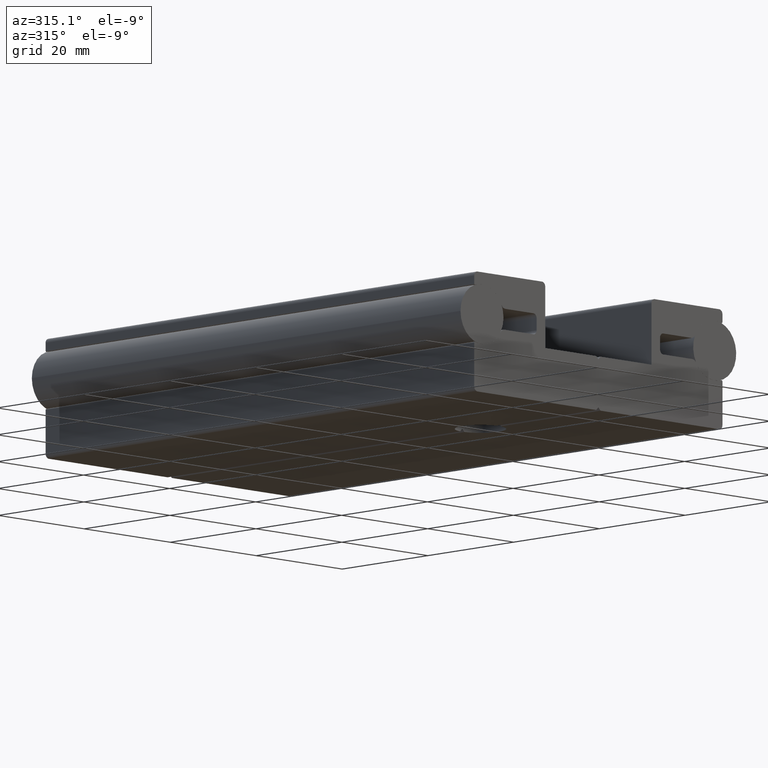
[diagram: clean part render]
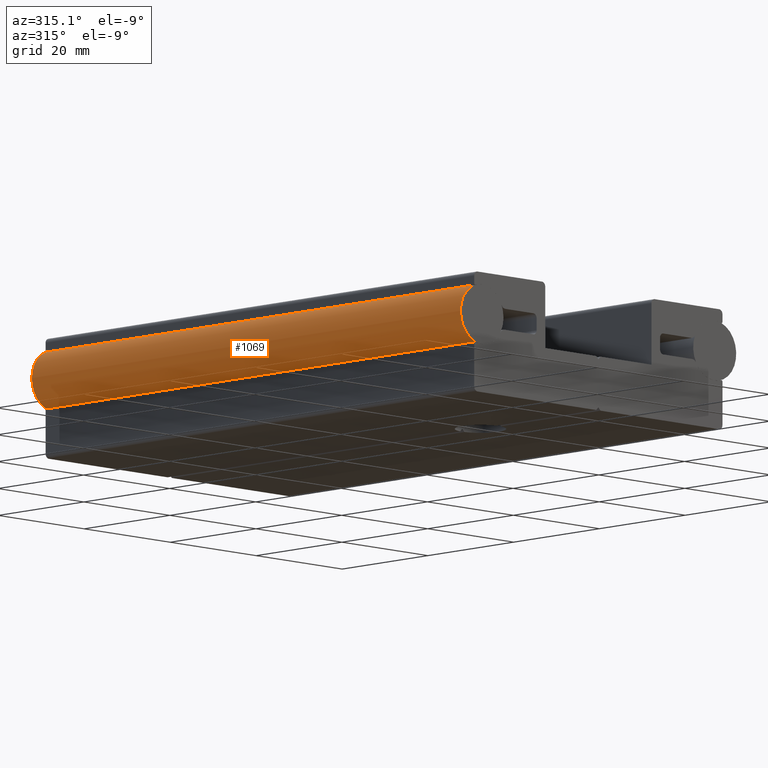
[diagram: same view with one face highlighted and labeled with its STEP entity id]
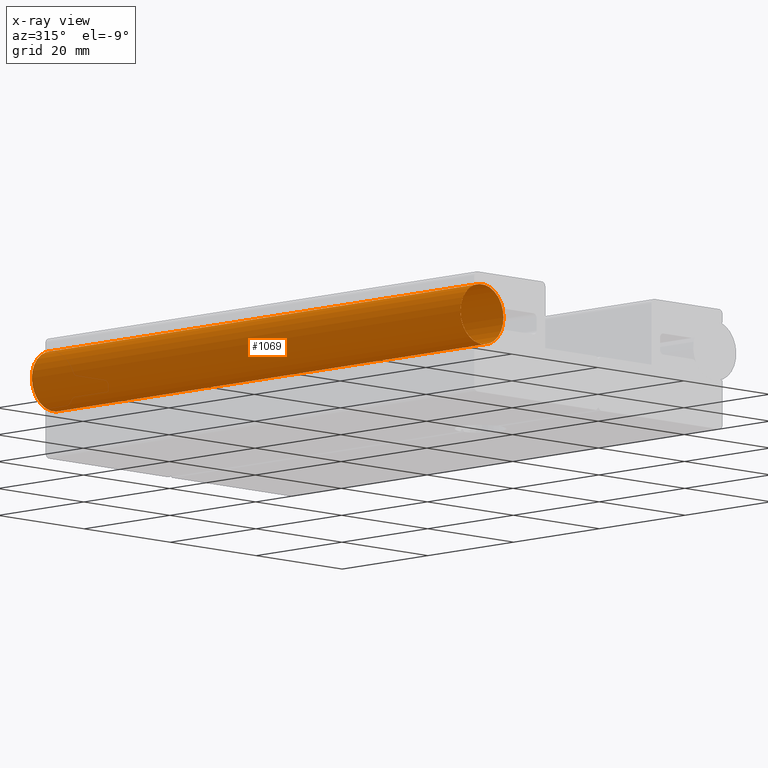
[diagram: x-ray of the same camera — body ghosted, the highlighted face saturated]
A machine part, auxiliary view. The second image highlights one B-rep face of the part: STEP entity #1069.
The next image is the same camera in x-ray: the body ghosted, the highlighted face saturated — about 0% of this face is hidden behind the body in this view.
In plain terms, the highlighted cylindrical surface (bore or boss wall) has radius 5 mm, axis along (0, -1, 0).
Its self-contained STEP definition (entity closure, byte-faithful):
#113=FACE_OUTER_BOUND('',#167,.T.);
#167=EDGE_LOOP('',(#988,#989,#990,#991));
#264=LINE('',#1915,#360);
#360=VECTOR('',#1591,5.);
#411=CIRCLE('',#1257,5.);
#412=CIRCLE('',#1259,5.);
#523=VERTEX_POINT('',#1910);
#524=VERTEX_POINT('',#1913);
#678=EDGE_CURVE('',#523,#523,#411,.T.);
#679=EDGE_CURVE('',#524,#524,#412,.T.);
#680=EDGE_CURVE('',#524,#523,#264,.T.);
#988=ORIENTED_EDGE('',*,*,#679,.F.);
#989=ORIENTED_EDGE('',*,*,#680,.T.);
#990=ORIENTED_EDGE('',*,*,#678,.F.);
#991=ORIENTED_EDGE('',*,*,#680,.F.);
#1016=CYLINDRICAL_SURFACE('',#1258,5.);
#1069=ADVANCED_FACE('',(#113),#1016,.T.);
#1257=AXIS2_PLACEMENT_3D('',#1911,#1585,#1586);
#1258=AXIS2_PLACEMENT_3D('',#1912,#1587,#1588);
#1259=AXIS2_PLACEMENT_3D('',#1914,#1589,#1590);
#1585=DIRECTION('center_axis',(0.,0.,-1.));
#1586=DIRECTION('ref_axis',(-1.,0.,0.));
#1587=DIRECTION('center_axis',(0.,0.,1.));
#1588=DIRECTION('ref_axis',(-1.,0.,0.));
#1589=DIRECTION('center_axis',(0.,0.,1.));
#1590=DIRECTION('ref_axis',(-1.,0.,0.));
#1591=DIRECTION('',(0.,0.,-1.));
#1910=CARTESIAN_POINT('',(5.,6.12323399573677E-16,-50.));
#1911=CARTESIAN_POINT('Origin',(0.,0.,-50.));
#1912=CARTESIAN_POINT('Origin',(0.,0.,0.));
#1913=CARTESIAN_POINT('',(5.,6.12323399573677E-16,50.));
#1914=CARTESIAN_POINT('Origin',(0.,0.,50.));
#1915=CARTESIAN_POINT('',(5.,6.12323399573677E-16,0.));